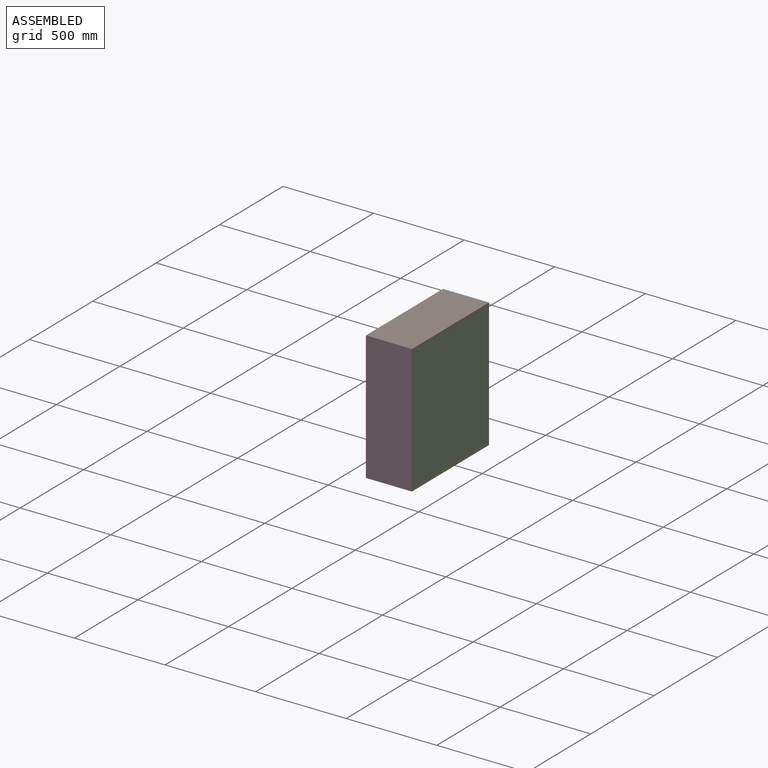
[diagram: assembled view]
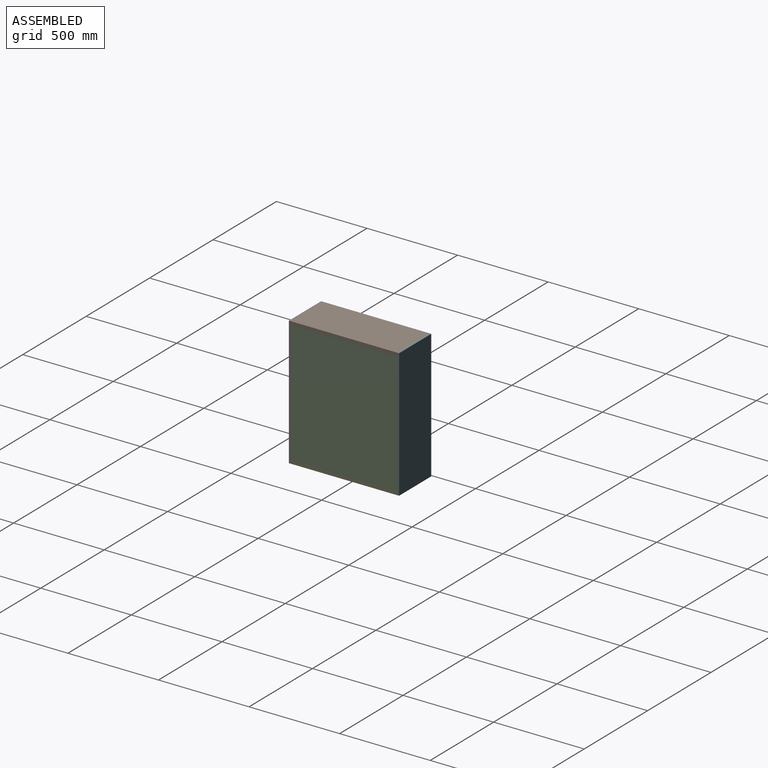
[diagram: assembled view, second angle]
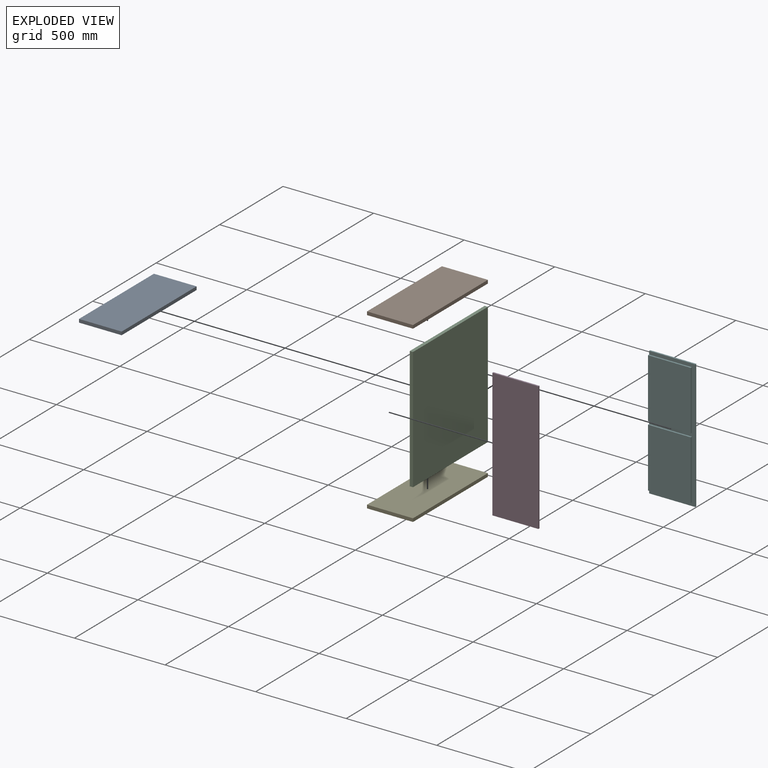
[diagram: exploded view]
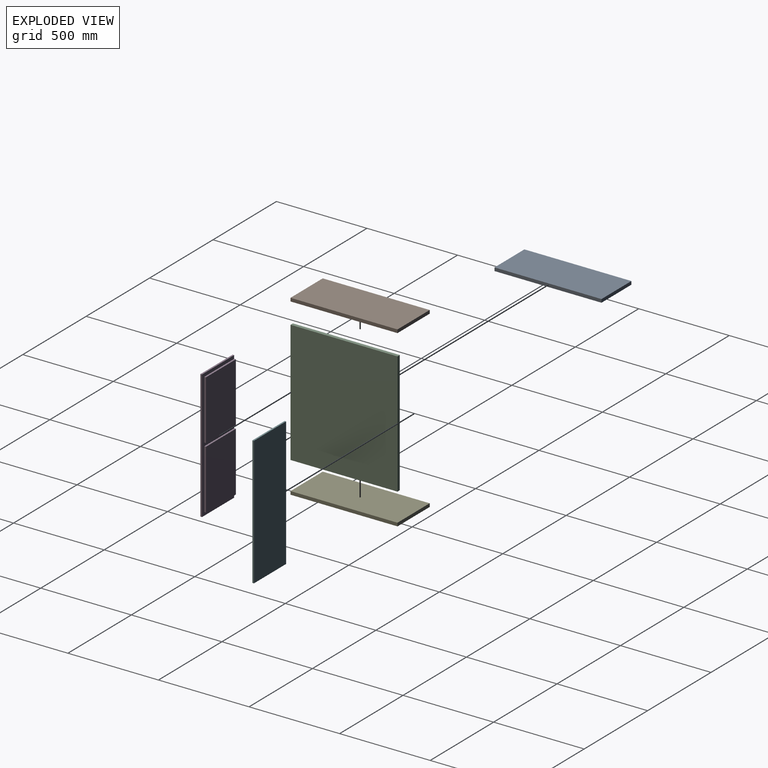
[diagram: exploded view, second angle]
ASSEMBLY  parts=6 mates=5
PART A: 6 faces, bbox 235.7x590.6x18.3 mm
  f0: plane 235.71x18.29mm, normal (0,1,0), area 4310.7mm2, adj f1,f3,f4,f5
  f1: plane 590.55x18.29mm, normal (1,0,0), area 10800mm2, adj f0,f2,f3,f4
  f2: plane 235.71x18.29mm, normal (0,-1,0), area 4310.7mm2, adj f1,f3,f4,f5
  f3: plane 590.55x235.71mm, normal (0,0,-1), area 139199.7mm2, adj f0,f1,f2,f5
  f4: plane 590.55x235.71mm, normal (0,0,1), area 139199.7mm2, adj f0,f1,f2,f5
  f5: plane 590.55x18.29mm, normal (-1,0,0), area 10800mm2, adj f0,f2,f3,f4
PART B: 6 faces, bbox 254x590.6x18.3 mm
  f0: plane 590.55x254mm, normal (0,0,-1), area 149999.7mm2, adj f1,f3,f4,f5
  f1: plane 590.55x18.29mm, normal (-1,0,0), area 10800mm2, adj f0,f2,f4,f5
  f2: plane 590.55x254mm, normal (0,0,1), area 149999.7mm2, adj f1,f3,f4,f5
  f3: plane 590.55x18.29mm, normal (1,0,0), area 10800mm2, adj f0,f2,f4,f5
  f4: plane 254x18.29mm, normal (0,1,0), area 4645.2mm2, adj f0,f1,f2,f3
  f5: plane 254x18.29mm, normal (0,-1,0), area 4645.2mm2, adj f0,f1,f2,f3
PART C: 6 faces, bbox 18.3x590.6x674.6 mm
  f0: plane 674.62x18.29mm, normal (0,1,0), area 12337.5mm2, adj f1,f3,f4,f5
  f1: plane 590.55x18.29mm, normal (0,0,1), area 10800mm2, adj f0,f2,f3,f4
  f2: plane 674.62x18.29mm, normal (0,-1,0), area 12337.5mm2, adj f1,f3,f4,f5
  f3: plane 674.62x590.55mm, normal (1,0,0), area 398399.2mm2, adj f0,f1,f2,f5
  f4: plane 674.62x590.55mm, normal (-1,0,0), area 398399.2mm2, adj f0,f1,f2,f5
  f5: plane 590.55x18.29mm, normal (0,0,-1), area 10800mm2, adj f0,f2,f3,f4
PART D: 14 faces, bbox 254x18.3x711.2 mm
  f0: plane 328.17x235.71mm, normal (0,1,0), area 77353.1mm2, adj f2,f8,f9,f12
  f1: plane 328.17x9.53mm, normal (1,0,0), area 3125.8mm2, adj f7,f10,f11,f13
  f2: plane 711.2x18.29mm, normal (-1,0,0), area 12483.8mm2, adj f0,f3,f5,f6,f7,f8,f10,f11
  f3: plane 254x8.76mm, normal (0,0,-1), area 2225.8mm2, adj f2,f4,f6,f10
  f4: plane 711.2x8.76mm, normal (1,0,0), area 6232.2mm2, adj f3,f5,f6,f10
  f5: plane 254x8.76mm, normal (0,0,1), area 2225.8mm2, adj f2,f4,f6,f10
  f6: plane 711.2x254mm, normal (0,-1,0), area 180644.8mm2, adj f2,f3,f4,f5
  f7: plane 328.17x235.71mm, normal (0,1,0), area 77353.1mm2, adj f1,f2,f11,f13
  f8: plane 235.71x9.53mm, normal (0,0,-1), area 2245.2mm2, adj f0,f2,f9,f10
  f9: plane 328.17x9.53mm, normal (1,0,0), area 3125.8mm2, adj f0,f8,f10,f12
  f10: plane 711.2x254mm, normal (0,1,0), area 25938.5mm2, adj f1,f2,f3,f4,f5,f8,f9,f11
  f11: plane 235.71x9.53mm, normal (0,0,1), area 2245.2mm2, adj f1,f2,f7,f10
  f12: plane 235.71x9.53mm, normal (0,0,1), area 2245.2mm2, adj f0,f2,f9,f10
  f13: plane 235.71x9.53mm, normal (0,0,-1), area 2245.2mm2, adj f1,f2,f7,f10
PART E: same geometry as B
PART F: 14 faces, bbox 254x18.3x711.2 mm
  f0: plane 328.17x235.71mm, normal (0,-1,0), area 77353.1mm2, adj f2,f8,f9,f12
  f1: plane 328.17x9.53mm, normal (1,0,0), area 3125.8mm2, adj f7,f10,f11,f13
  f2: plane 711.2x18.29mm, normal (-1,0,0), area 12483.8mm2, adj f0,f3,f5,f6,f7,f8,f10,f11
  f3: plane 254x8.76mm, normal (0,0,-1), area 2225.8mm2, adj f2,f4,f6,f10
  f4: plane 711.2x8.76mm, normal (1,0,0), area 6232.2mm2, adj f3,f5,f6,f10
  f5: plane 254x8.76mm, normal (0,0,1), area 2225.8mm2, adj f2,f4,f6,f10
  f6: plane 711.2x254mm, normal (0,1,0), area 180644.8mm2, adj f2,f3,f4,f5
  f7: plane 328.17x235.71mm, normal (0,-1,0), area 77353.1mm2, adj f1,f2,f11,f13
  f8: plane 235.71x9.53mm, normal (0,0,-1), area 2245.2mm2, adj f0,f2,f9,f10
  f9: plane 328.17x9.53mm, normal (1,0,0), area 3125.8mm2, adj f0,f8,f10,f12
  f10: plane 711.2x254mm, normal (0,-1,0), area 25938.5mm2, adj f1,f2,f3,f4,f5,f8,f9,f11
  f11: plane 235.71x9.53mm, normal (0,0,1), area 2245.2mm2, adj f1,f2,f7,f10
  f12: plane 235.71x9.53mm, normal (0,0,1), area 2245.2mm2, adj f0,f2,f9,f10
  f13: plane 235.71x9.53mm, normal (0,0,-1), area 2245.2mm2, adj f1,f2,f7,f10
PLACE A t=(-194.59,-120.24,281.16)mm
PLACE B t=(-194.59,-120.24,281.16)mm
PLACE C t=(-194.59,-120.24,281.16)mm
PLACE D t=(-194.59,-120.24,281.16)mm
PLACE E t=(-194.59,-120.24,-411.75)mm fixed
PLACE F t=(-194.59,451.26,281.16)mm
MATE fastened C.f3 <-> E.f3  axis (1,0,0) through (59.41,-129.76,299.45)mm
MATE fastened B.f3 <-> F.f4  axis (1,0,0) through (59.41,460.79,992.36)mm
MATE fastened A.f5 <-> D.f2  axis (-1,0,0) through (-194.59,-129.76,645.91)mm
MATE fastened C.f3 <-> B.f3  axis (1,0,0) through (59.41,-129.76,974.08)mm
MATE fastened E.f5 <-> D.f10  axis (0,-1,0) through (-194.59,-129.76,281.16)mm
